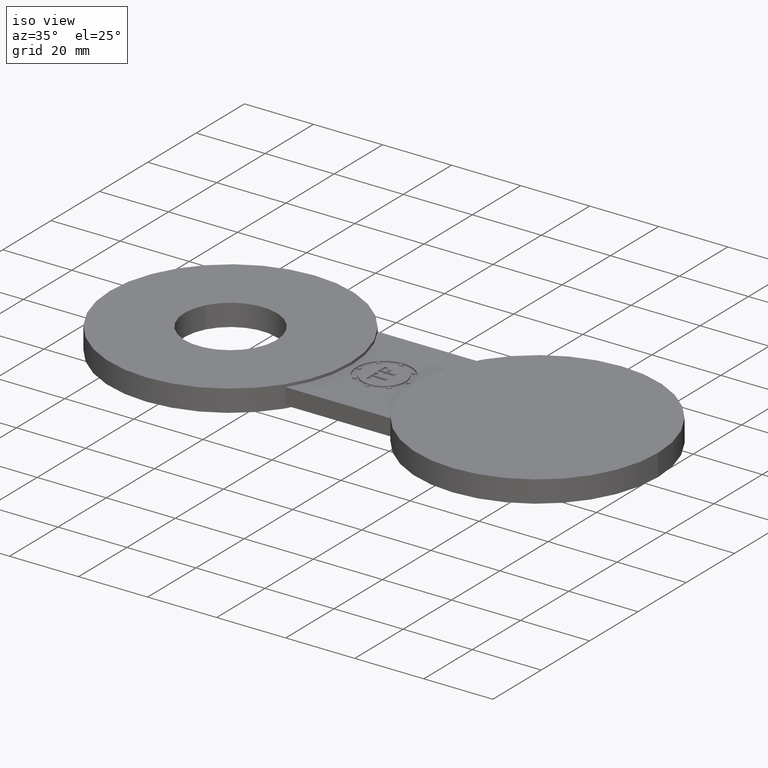
[diagram: clean part render]
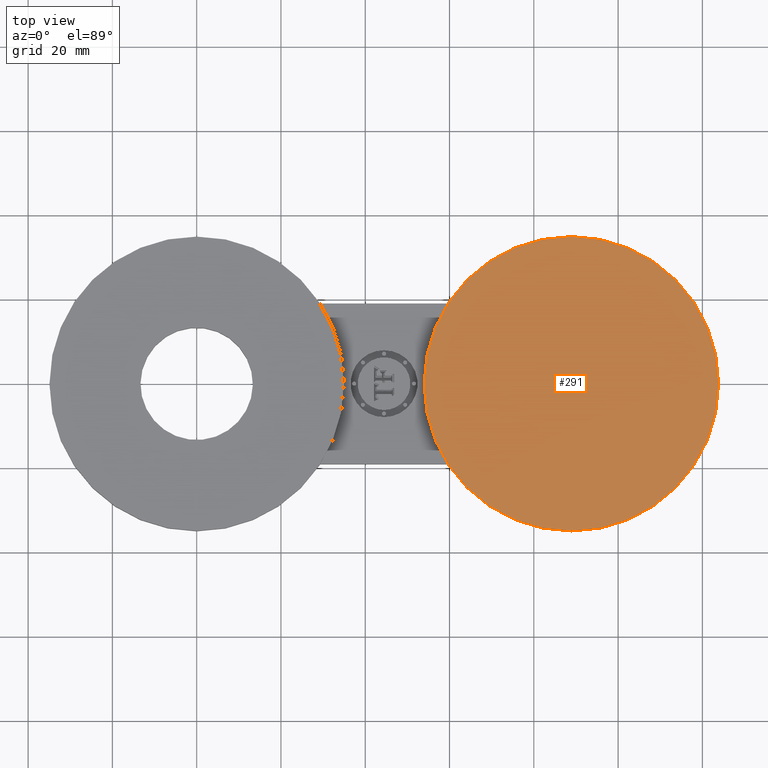
[diagram: tour spotlight — one face highlighted and labeled with its STEP entity id]
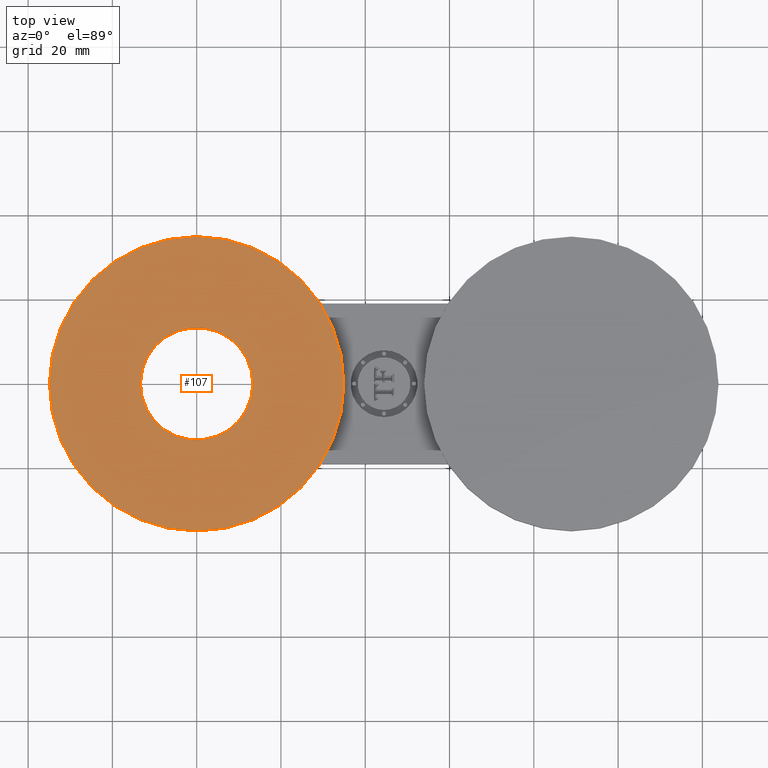
[diagram: tour spotlight — one face highlighted and labeled with its STEP entity id]
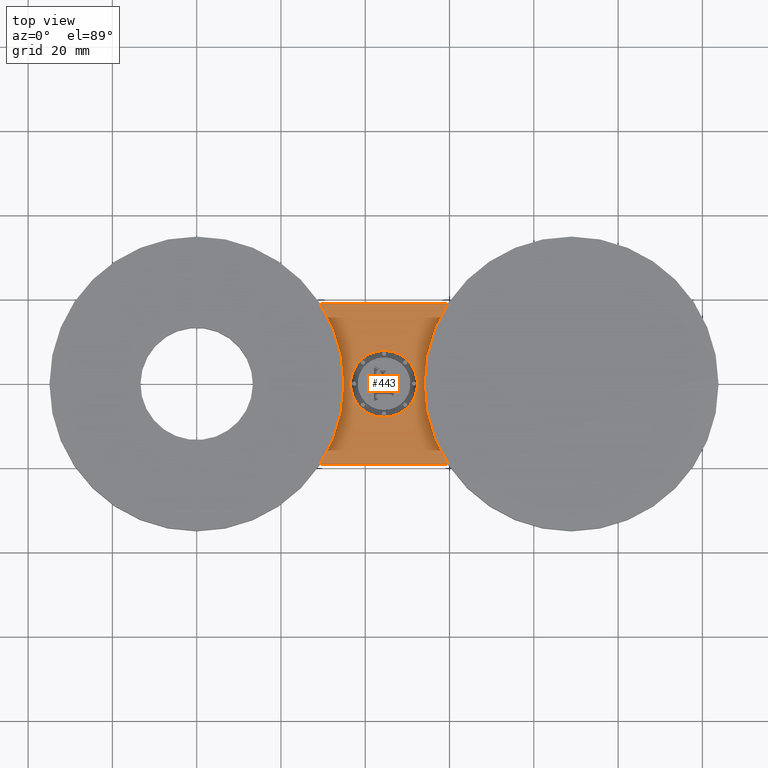
[diagram: tour spotlight — one face highlighted and labeled with its STEP entity id]
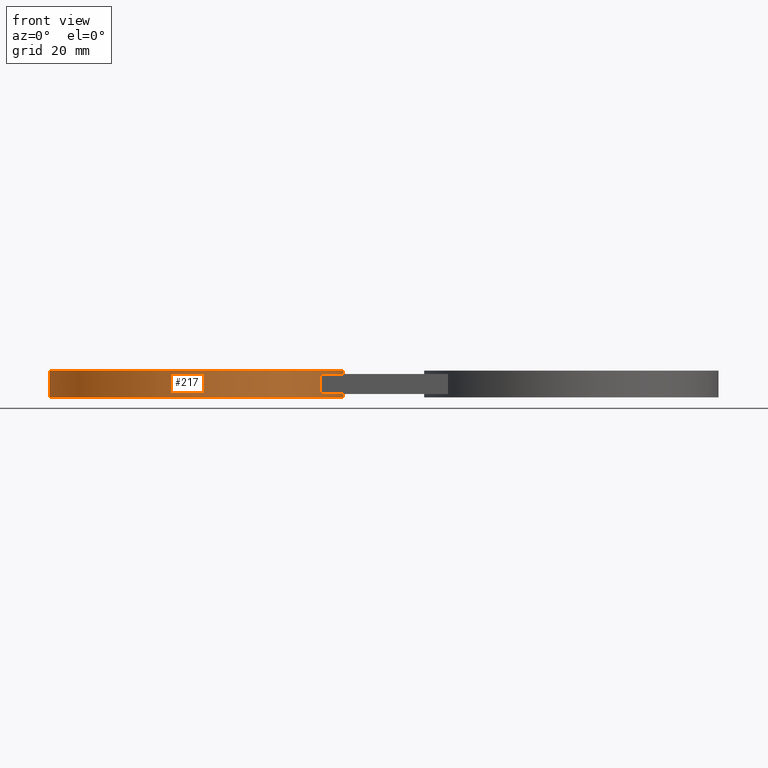
[diagram: tour spotlight — one face highlighted and labeled with its STEP entity id]
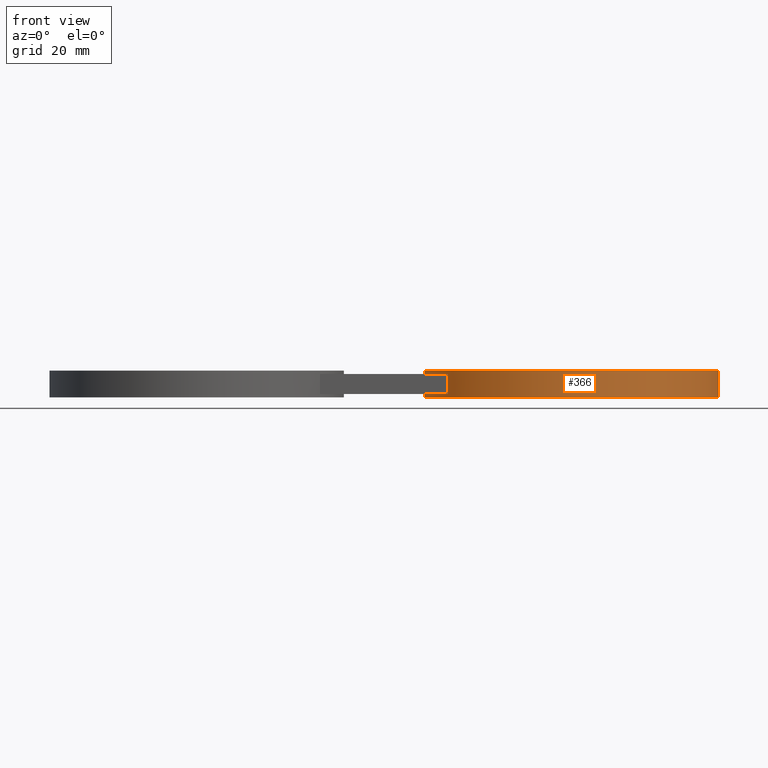
[diagram: tour spotlight — one face highlighted and labeled with its STEP entity id]
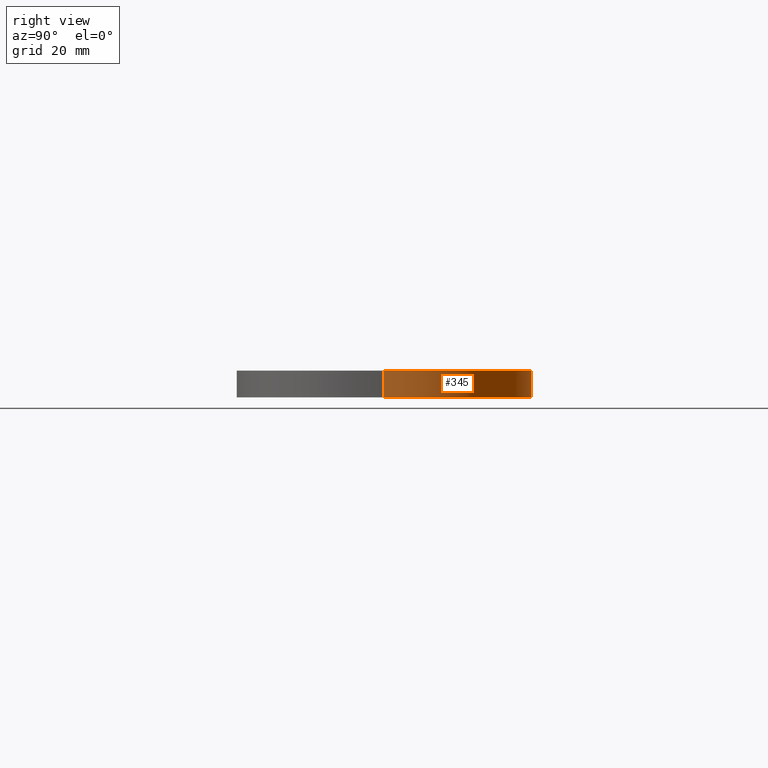
[diagram: tour spotlight — one face highlighted and labeled with its STEP entity id]
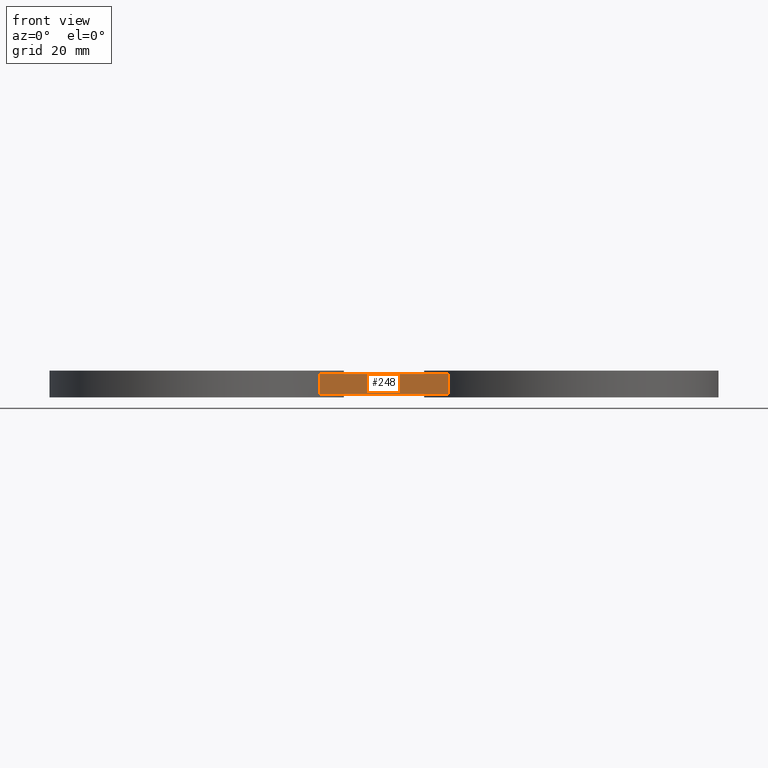
[diagram: tour spotlight — one face highlighted and labeled with its STEP entity id]
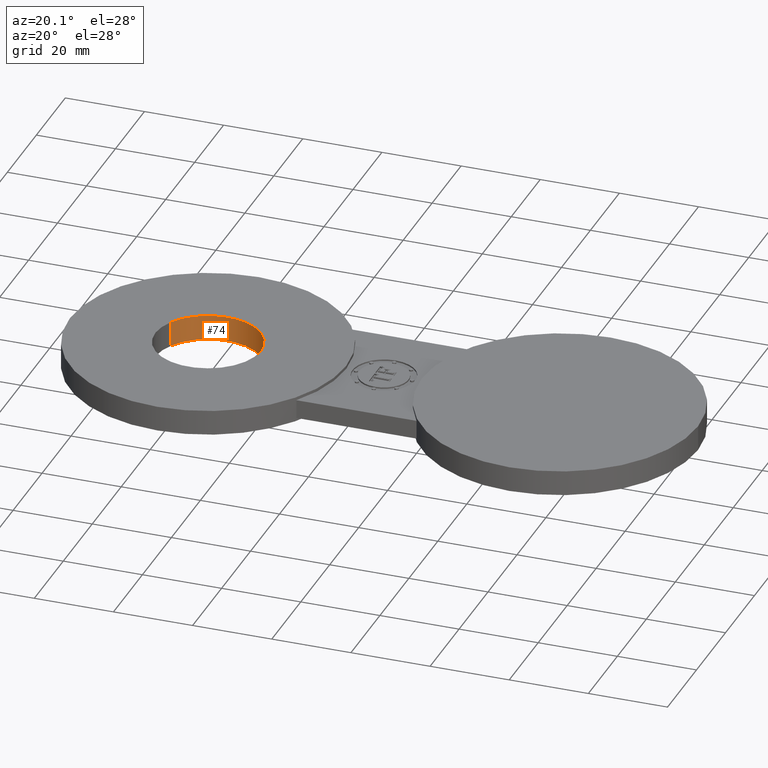
[diagram: tour spotlight — one face highlighted and labeled with its STEP entity id]
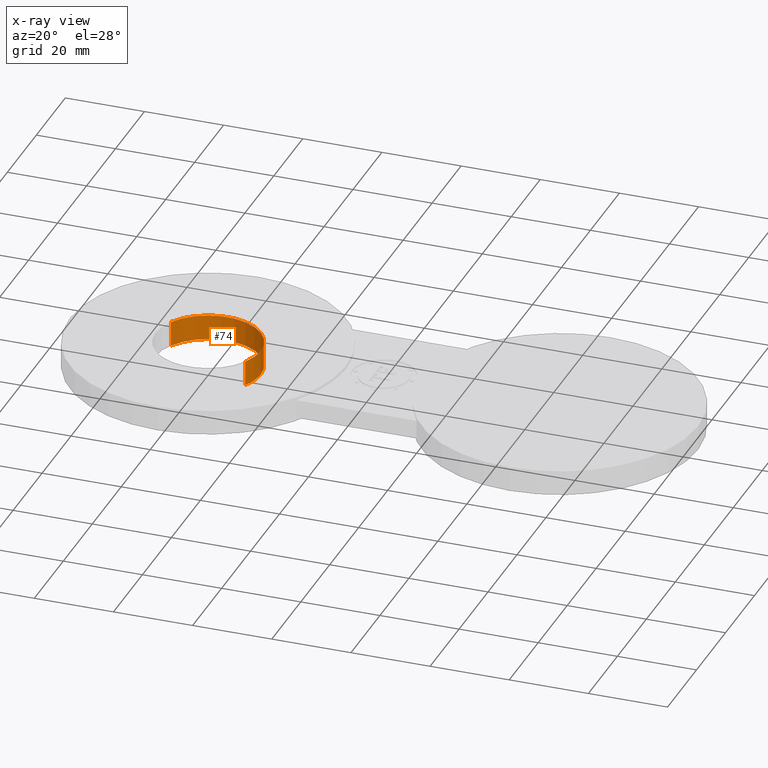
[diagram: x-ray of the same camera — body ghosted, this tour face saturated]
A machine part: a face-by-face anatomy tour. The part has 399 B-rep faces; the first image is the clean iso view, then the 8 largest visible faces are spotlighted one at a time (largest first), each with its STEP entity span.

Face 1 — top view, entity #291. In plain terms, the highlighted planar face has unit normal (0, 0, 1).
Definition (entity closure, byte-faithful):
#78=AXIS2_PLACEMENT_3D('Plane Axis2P3D',#75,#76,#77) ;
#275=AXIS2_PLACEMENT_3D('Circle Axis2P3D',#273,#274,$) ;
#284=AXIS2_PLACEMENT_3D('Circle Axis2P3D',#282,#283,$) ;
#75=CARTESIAN_POINT('Axis2P3D Location',(0.,0.,0.125000000001)) ;
#273=CARTESIAN_POINT('Axis2P3D Location',(3.50000000001,4.28626379703E-016,0.125000000001)) ;
#277=CARTESIAN_POINT('Vertex',(2.12500000001,5.97015314587E-016,0.125000000001)) ;
#279=CARTESIAN_POINT('Vertex',(4.87500000002,9.18485099364E-017,0.125000000001)) ;
#282=CARTESIAN_POINT('Axis2P3D Location',(3.50000000001,4.28626379703E-016,0.125000000001)) ;
#76=DIRECTION('Axis2P3D Direction',(0.,0.,0.0393700787402)) ;
#77=DIRECTION('Axis2P3D XDirection',(0.0393700787402,0.,0.)) ;
#274=DIRECTION('Axis2P3D Direction',(0.,0.,0.0393700787402)) ;
#283=DIRECTION('Axis2P3D Direction',(0.,0.,0.0393700787402)) ;
#288=ORIENTED_EDGE('',*,*,#281,.T.) ;
#289=ORIENTED_EDGE('',*,*,#286,.T.) ;
#291=ADVANCED_FACE('PartBody',(#290),#79,.T.) ;
#276=CIRCLE('generated circle',#275,1.37500000001) ;
#285=CIRCLE('generated circle',#284,1.37500000001) ;
#281=EDGE_CURVE('',#278,#280,#276,.T.) ;
#286=EDGE_CURVE('',#280,#278,#285,.T.) ;
#287=EDGE_LOOP('',(#288,#289)) ;
#290=FACE_OUTER_BOUND('',#287,.T.) ;
#79=PLANE('',#78) ;
#278=VERTEX_POINT('',#277) ;
#280=VERTEX_POINT('',#279) ;

Face 2 — top view, entity #107. In plain terms, the highlighted planar face has unit normal (0, 0, 1).
Definition (entity closure, byte-faithful):
#65=AXIS2_PLACEMENT_3D('Circle Axis2P3D',#63,#64,$) ;
#78=AXIS2_PLACEMENT_3D('Plane Axis2P3D',#75,#76,#77) ;
#82=AXIS2_PLACEMENT_3D('Circle Axis2P3D',#80,#81,$) ;
#91=AXIS2_PLACEMENT_3D('Circle Axis2P3D',#89,#90,$) ;
#100=AXIS2_PLACEMENT_3D('Circle Axis2P3D',#98,#99,$) ;
#46=CARTESIAN_POINT('Vertex',(-0.460730844994,0.251698407768,0.125000000001)) ;
#60=CARTESIAN_POINT('Vertex',(0.460730844994,-0.251698407768,0.125000000001)) ;
#63=CARTESIAN_POINT('Axis2P3D Location',(8.52336574023E-017,-6.99353086378E-017,0.125000000001)) ;
#75=CARTESIAN_POINT('Axis2P3D Location',(0.,0.,0.125000000001)) ;
#80=CARTESIAN_POINT('Axis2P3D Location',(0.,0.,0.125000000001)) ;
#84=CARTESIAN_POINT('Vertex',(1.37500000001,0.,0.125000000001)) ;
#86=CARTESIAN_POINT('Vertex',(-1.37500000001,1.68388934883E-016,0.125000000001)) ;
#89=CARTESIAN_POINT('Axis2P3D Location',(0.,0.,0.125000000001)) ;
#98=CARTESIAN_POINT('Axis2P3D Location',(8.74191357973E-017,-6.99353086378E-017,0.125000000001)) ;
#64=DIRECTION('Axis2P3D Direction',(0.,-0.,-0.0393700787402)) ;
#76=DIRECTION('Axis2P3D Direction',(0.,0.,0.0393700787402)) ;
#77=DIRECTION('Axis2P3D XDirection',(0.0393700787402,0.,0.)) ;
#81=DIRECTION('Axis2P3D Direction',(0.,0.,0.0393700787402)) ;
#90=DIRECTION('Axis2P3D Direction',(0.,0.,0.0393700787402)) ;
#99=DIRECTION('Axis2P3D Direction',(0.,0.,0.0393700787402)) ;
#95=ORIENTED_EDGE('',*,*,#88,.T.) ;
#96=ORIENTED_EDGE('',*,*,#93,.T.) ;
#104=ORIENTED_EDGE('',*,*,#102,.F.) ;
#105=ORIENTED_EDGE('',*,*,#67,.F.) ;
#106=FACE_BOUND('',#103,.T.) ;
#107=ADVANCED_FACE('PartBody',(#97,#106),#79,.T.) ;
#66=CIRCLE('generated circle',#65,0.525000000002) ;
#83=CIRCLE('generated circle',#82,1.37500000001) ;
#92=CIRCLE('generated circle',#91,1.37500000001) ;
#101=CIRCLE('generated circle',#100,0.525000000002) ;
#67=EDGE_CURVE('',#61,#47,#66,.F.) ;
#88=EDGE_CURVE('',#85,#87,#83,.T.) ;
#93=EDGE_CURVE('',#87,#85,#92,.T.) ;
#102=EDGE_CURVE('',#47,#61,#101,.T.) ;
#94=EDGE_LOOP('',(#95,#96)) ;
#103=EDGE_LOOP('',(#104,#105)) ;
#97=FACE_OUTER_BOUND('',#94,.T.) ;
#79=PLANE('',#78) ;
#47=VERTEX_POINT('',#46) ;
#61=VERTEX_POINT('',#60) ;
#85=VERTEX_POINT('',#84) ;
#87=VERTEX_POINT('',#86) ;

Face 3 — top view, entity #443. In plain terms, the highlighted planar face has unit normal (0, 0, 1).
Definition (entity closure, byte-faithful):
#155=AXIS2_PLACEMENT_3D('Circle Axis2P3D',#153,#154,$) ;
#204=AXIS2_PLACEMENT_3D('Circle Axis2P3D',#202,#203,$) ;
#332=AXIS2_PLACEMENT_3D('Circle Axis2P3D',#330,#331,$) ;
#348=AXIS2_PLACEMENT_3D('Circle Axis2P3D',#346,#347,$) ;
#415=AXIS2_PLACEMENT_3D('Plane Axis2P3D',#412,#413,#414) ;
#427=AXIS2_PLACEMENT_3D('Circle Axis2P3D',#425,#426,$) ;
#436=AXIS2_PLACEMENT_3D('Circle Axis2P3D',#434,#435,$) ;
#150=CARTESIAN_POINT('Vertex',(1.37500000001,0.,0.0937500000004)) ;
#153=CARTESIAN_POINT('Axis2P3D Location',(0.,0.,0.0937500000004)) ;
#157=CARTESIAN_POINT('Vertex',(1.15244305717,0.750000000003,0.0937500000004)) ;
#199=CARTESIAN_POINT('Vertex',(1.15244305717,-0.750000000003,0.0937500000004)) ;
#202=CARTESIAN_POINT('Axis2P3D Location',(0.,0.,0.0937500000004)) ;
#234=CARTESIAN_POINT('Vertex',(2.34755694285,-0.750000000003,0.0937500000004)) ;
#237=CARTESIAN_POINT('Line Origine',(1.75000000001,-0.750000000003,0.0937500000004)) ;
#301=CARTESIAN_POINT('Vertex',(2.12500000001,5.97015314587E-016,0.0937500000004)) ;
#327=CARTESIAN_POINT('Vertex',(2.34755694285,0.750000000003,0.0937500000004)) ;
#330=CARTESIAN_POINT('Axis2P3D Location',(3.50000000001,4.28626379703E-016,0.0937500000004)) ;
#346=CARTESIAN_POINT('Axis2P3D Location',(3.50000000001,4.28626379703E-016,0.0937500000004)) ;
#391=CARTESIAN_POINT('Line Origine',(1.75000000001,0.750000000003,0.0937500000004)) ;
#412=CARTESIAN_POINT('Axis2P3D Location',(0.,0.,0.0937500000004)) ;
#425=CARTESIAN_POINT('Axis2P3D Location',(1.75000000001,-1.62724055353E-015,0.0937500000004)) ;
#429=CARTESIAN_POINT('Vertex',(1.75000000001,0.312499996876,0.0937500000004)) ;
#431=CARTESIAN_POINT('Vertex',(1.75000000001,-0.312499996876,0.0937500000004)) ;
#434=CARTESIAN_POINT('Axis2P3D Location',(1.75000000001,-1.62724055353E-015,0.0937500000004)) ;
#154=DIRECTION('Axis2P3D Direction',(0.,0.,0.0393700787402)) ;
#203=DIRECTION('Axis2P3D Direction',(0.,0.,0.0393700787402)) ;
#238=DIRECTION('Vector Direction',(0.0393700787402,0.,0.)) ;
#331=DIRECTION('Axis2P3D Direction',(0.,0.,0.0393700787402)) ;
#347=DIRECTION('Axis2P3D Direction',(0.,0.,0.0393700787402)) ;
#392=DIRECTION('Vector Direction',(-0.0393700787402,0.,0.)) ;
#413=DIRECTION('Axis2P3D Direction',(0.,0.,0.0393700787402)) ;
#414=DIRECTION('Axis2P3D XDirection',(0.0393700787402,0.,0.)) ;
#426=DIRECTION('Axis2P3D Direction',(0.,0.,0.0393700787402)) ;
#435=DIRECTION('Axis2P3D Direction',(0.,0.,0.0393700787402)) ;
#239=VECTOR('Line Direction',#238,0.0393700787402) ;
#393=VECTOR('Line Direction',#392,0.0393700787402) ;
#418=ORIENTED_EDGE('',*,*,#350,.F.) ;
#419=ORIENTED_EDGE('',*,*,#334,.F.) ;
#420=ORIENTED_EDGE('',*,*,#395,.T.) ;
#421=ORIENTED_EDGE('',*,*,#159,.F.) ;
#422=ORIENTED_EDGE('',*,*,#206,.F.) ;
#423=ORIENTED_EDGE('',*,*,#241,.T.) ;
#440=ORIENTED_EDGE('',*,*,#433,.F.) ;
#441=ORIENTED_EDGE('',*,*,#438,.F.) ;
#442=FACE_BOUND('',#439,.T.) ;
#443=ADVANCED_FACE('PartBody',(#424,#442),#416,.T.) ;
#156=CIRCLE('generated circle',#155,1.37500000001) ;
#205=CIRCLE('generated circle',#204,1.37500000001) ;
#333=CIRCLE('generated circle',#332,1.37500000001) ;
#349=CIRCLE('generated circle',#348,1.37500000001) ;
#428=CIRCLE('generated circle',#427,0.312499996876) ;
#437=CIRCLE('generated circle',#436,0.312499996876) ;
#159=EDGE_CURVE('',#151,#158,#156,.T.) ;
#206=EDGE_CURVE('',#200,#151,#205,.T.) ;
#241=EDGE_CURVE('',#200,#235,#240,.T.) ;
#334=EDGE_CURVE('',#328,#302,#333,.T.) ;
#350=EDGE_CURVE('',#302,#235,#349,.T.) ;
#395=EDGE_CURVE('',#328,#158,#394,.T.) ;
#433=EDGE_CURVE('',#430,#432,#428,.T.) ;
#438=EDGE_CURVE('',#432,#430,#437,.T.) ;
#417=EDGE_LOOP('',(#418,#419,#420,#421,#422,#423)) ;
#439=EDGE_LOOP('',(#440,#441)) ;
#424=FACE_OUTER_BOUND('',#417,.T.) ;
#240=LINE('Line',#237,#239) ;
#394=LINE('Line',#391,#393) ;
#416=PLANE('',#415) ;
#151=VERTEX_POINT('',#150) ;
#158=VERTEX_POINT('',#157) ;
#200=VERTEX_POINT('',#199) ;
#235=VERTEX_POINT('',#234) ;
#302=VERTEX_POINT('',#301) ;
#328=VERTEX_POINT('',#327) ;
#430=VERTEX_POINT('',#429) ;
#432=VERTEX_POINT('',#431) ;

Face 4 — front view, entity #217. In plain terms, the highlighted cylindrical surface (partial cylindrical patch) has radius 34.925 mm, axis along (0, 0, 1).
Definition (entity closure, byte-faithful):
#91=AXIS2_PLACEMENT_3D('Circle Axis2P3D',#89,#90,$) ;
#123=AXIS2_PLACEMENT_3D('Cylinder Axis2P3D',#120,#121,#122) ;
#185=AXIS2_PLACEMENT_3D('Circle Axis2P3D',#183,#184,$) ;
#190=AXIS2_PLACEMENT_3D('Circle Axis2P3D',#188,#189,$) ;
#204=AXIS2_PLACEMENT_3D('Circle Axis2P3D',#202,#203,$) ;
#84=CARTESIAN_POINT('Vertex',(1.37500000001,0.,0.125000000001)) ;
#86=CARTESIAN_POINT('Vertex',(-1.37500000001,1.68388934883E-016,0.125000000001)) ;
#89=CARTESIAN_POINT('Axis2P3D Location',(0.,0.,0.125000000001)) ;
#120=CARTESIAN_POINT('Axis2P3D Location',(0.,0.,0.)) ;
#125=CARTESIAN_POINT('Line Origine',(1.37500000001,0.,0.)) ;
#129=CARTESIAN_POINT('Vertex',(1.37500000001,0.,-0.125000000001)) ;
#131=CARTESIAN_POINT('Vertex',(1.37500000001,0.,-0.0937500000004)) ;
#138=CARTESIAN_POINT('Vertex',(-1.37500000001,1.68388934883E-016,-0.125000000001)) ;
#141=CARTESIAN_POINT('Line Origine',(-1.37500000001,1.68388934883E-016,0.)) ;
#146=CARTESIAN_POINT('Line Origine',(1.37500000001,0.,0.)) ;
#150=CARTESIAN_POINT('Vertex',(1.37500000001,0.,0.0937500000004)) ;
#183=CARTESIAN_POINT('Axis2P3D Location',(0.,0.,-0.125000000001)) ;
#188=CARTESIAN_POINT('Axis2P3D Location',(0.,0.,-0.0937500000004)) ;
#192=CARTESIAN_POINT('Vertex',(1.15244305717,-0.750000000003,-0.0937500000004)) ;
#195=CARTESIAN_POINT('Line Origine',(1.15244305717,-0.750000000003,0.)) ;
#199=CARTESIAN_POINT('Vertex',(1.15244305717,-0.750000000003,0.0937500000004)) ;
#202=CARTESIAN_POINT('Axis2P3D Location',(0.,0.,0.0937500000004)) ;
#90=DIRECTION('Axis2P3D Direction',(0.,0.,0.0393700787402)) ;
#121=DIRECTION('Axis2P3D Direction',(0.,0.,0.0393700787402)) ;
#122=DIRECTION('Axis2P3D XDirection',(-0.0393700787402,4.82144409113E-018,0.)) ;
#126=DIRECTION('Vector Direction',(0.,0.,0.0393700787402)) ;
#142=DIRECTION('Vector Direction',(0.,0.,0.0393700787402)) ;
#147=DIRECTION('Vector Direction',(0.,0.,0.0393700787402)) ;
#184=DIRECTION('Axis2P3D Direction',(0.,0.,0.0393700787402)) ;
#189=DIRECTION('Axis2P3D Direction',(0.,0.,0.0393700787402)) ;
#196=DIRECTION('Vector Direction',(0.,0.,0.0393700787402)) ;
#203=DIRECTION('Axis2P3D Direction',(0.,0.,0.0393700787402)) ;
#127=VECTOR('Line Direction',#126,0.0393700787402) ;
#143=VECTOR('Line Direction',#142,0.0393700787402) ;
#148=VECTOR('Line Direction',#147,0.0393700787402) ;
#197=VECTOR('Line Direction',#196,0.0393700787402) ;
#208=ORIENTED_EDGE('',*,*,#152,.T.) ;
#209=ORIENTED_EDGE('',*,*,#93,.F.) ;
#210=ORIENTED_EDGE('',*,*,#145,.F.) ;
#211=ORIENTED_EDGE('',*,*,#187,.T.) ;
#212=ORIENTED_EDGE('',*,*,#133,.T.) ;
#213=ORIENTED_EDGE('',*,*,#194,.F.) ;
#214=ORIENTED_EDGE('',*,*,#201,.T.) ;
#215=ORIENTED_EDGE('',*,*,#206,.T.) ;
#217=ADVANCED_FACE('PartBody',(#216),#124,.T.) ;
#92=CIRCLE('generated circle',#91,1.37500000001) ;
#186=CIRCLE('generated circle',#185,1.37500000001) ;
#191=CIRCLE('generated circle',#190,1.37500000001) ;
#205=CIRCLE('generated circle',#204,1.37500000001) ;
#124=CYLINDRICAL_SURFACE('generated cylinder',#123,1.37500000001) ;
#93=EDGE_CURVE('',#87,#85,#92,.T.) ;
#133=EDGE_CURVE('',#130,#132,#128,.T.) ;
#145=EDGE_CURVE('',#139,#87,#144,.T.) ;
#152=EDGE_CURVE('',#151,#85,#149,.T.) ;
#187=EDGE_CURVE('',#139,#130,#186,.T.) ;
#194=EDGE_CURVE('',#193,#132,#191,.T.) ;
#201=EDGE_CURVE('',#193,#200,#198,.T.) ;
#206=EDGE_CURVE('',#200,#151,#205,.T.) ;
#207=EDGE_LOOP('',(#208,#209,#210,#211,#212,#213,#214,#215)) ;
#216=FACE_OUTER_BOUND('',#207,.T.) ;
#128=LINE('Line',#125,#127) ;
#144=LINE('Line',#141,#143) ;
#149=LINE('Line',#146,#148) ;
#198=LINE('Line',#195,#197) ;
#85=VERTEX_POINT('',#84) ;
#87=VERTEX_POINT('',#86) ;
#130=VERTEX_POINT('',#129) ;
#132=VERTEX_POINT('',#131) ;
#139=VERTEX_POINT('',#138) ;
#151=VERTEX_POINT('',#150) ;
#193=VERTEX_POINT('',#192) ;
#200=VERTEX_POINT('',#199) ;

Face 5 — front view, entity #366. In plain terms, the highlighted cylindrical surface (partial cylindrical patch) has radius 34.925 mm, axis along (0, 0, 1).
Definition (entity closure, byte-faithful):
#265=AXIS2_PLACEMENT_3D('Circle Axis2P3D',#263,#264,$) ;
#275=AXIS2_PLACEMENT_3D('Circle Axis2P3D',#273,#274,$) ;
#295=AXIS2_PLACEMENT_3D('Cylinder Axis2P3D',#292,#293,#294) ;
#348=AXIS2_PLACEMENT_3D('Circle Axis2P3D',#346,#347,$) ;
#353=AXIS2_PLACEMENT_3D('Circle Axis2P3D',#351,#352,$) ;
#227=CARTESIAN_POINT('Vertex',(2.34755694285,-0.750000000003,-0.0937500000004)) ;
#230=CARTESIAN_POINT('Line Origine',(2.34755694285,-0.750000000003,0.)) ;
#234=CARTESIAN_POINT('Vertex',(2.34755694285,-0.750000000003,0.0937500000004)) ;
#258=CARTESIAN_POINT('Vertex',(4.87500000002,9.18485099364E-017,-0.125000000001)) ;
#260=CARTESIAN_POINT('Vertex',(2.12500000001,5.97015314587E-016,-0.125000000001)) ;
#263=CARTESIAN_POINT('Axis2P3D Location',(3.50000000001,4.28626379703E-016,-0.125000000001)) ;
#273=CARTESIAN_POINT('Axis2P3D Location',(3.50000000001,4.28626379703E-016,0.125000000001)) ;
#277=CARTESIAN_POINT('Vertex',(2.12500000001,5.97015314587E-016,0.125000000001)) ;
#279=CARTESIAN_POINT('Vertex',(4.87500000002,9.18485099364E-017,0.125000000001)) ;
#292=CARTESIAN_POINT('Axis2P3D Location',(3.50000000001,4.28626379703E-016,0.)) ;
#297=CARTESIAN_POINT('Line Origine',(2.12500000001,9.33793184354E-016,0.)) ;
#301=CARTESIAN_POINT('Vertex',(2.12500000001,5.97015314587E-016,0.0937500000004)) ;
#304=CARTESIAN_POINT('Line Origine',(4.87500000002,9.18485099364E-017,0.)) ;
#309=CARTESIAN_POINT('Line Origine',(2.12500000001,9.33793184354E-016,0.)) ;
#313=CARTESIAN_POINT('Vertex',(2.12500000001,5.97015314587E-016,-0.0937500000004)) ;
#346=CARTESIAN_POINT('Axis2P3D Location',(3.50000000001,4.28626379703E-016,0.0937500000004)) ;
#351=CARTESIAN_POINT('Axis2P3D Location',(3.50000000001,4.28626379703E-016,-0.0937500000004)) ;
#231=DIRECTION('Vector Direction',(0.,0.,0.0393700787402)) ;
#264=DIRECTION('Axis2P3D Direction',(0.,0.,0.0393700787402)) ;
#274=DIRECTION('Axis2P3D Direction',(0.,0.,0.0393700787402)) ;
#293=DIRECTION('Axis2P3D Direction',(0.,0.,0.0393700787402)) ;
#294=DIRECTION('Axis2P3D XDirection',(-0.0393700787402,4.82144409113E-018,0.)) ;
#298=DIRECTION('Vector Direction',(0.,0.,0.0393700787402)) ;
#305=DIRECTION('Vector Direction',(0.,0.,0.0393700787402)) ;
#310=DIRECTION('Vector Direction',(0.,0.,0.0393700787402)) ;
#347=DIRECTION('Axis2P3D Direction',(0.,0.,0.0393700787402)) ;
#352=DIRECTION('Axis2P3D Direction',(0.,0.,0.0393700787402)) ;
#232=VECTOR('Line Direction',#231,0.0393700787402) ;
#299=VECTOR('Line Direction',#298,0.0393700787402) ;
#306=VECTOR('Line Direction',#305,0.0393700787402) ;
#311=VECTOR('Line Direction',#310,0.0393700787402) ;
#357=ORIENTED_EDGE('',*,*,#315,.F.) ;
#358=ORIENTED_EDGE('',*,*,#267,.T.) ;
#359=ORIENTED_EDGE('',*,*,#308,.T.) ;
#360=ORIENTED_EDGE('',*,*,#281,.F.) ;
#361=ORIENTED_EDGE('',*,*,#303,.F.) ;
#362=ORIENTED_EDGE('',*,*,#350,.T.) ;
#363=ORIENTED_EDGE('',*,*,#236,.F.) ;
#364=ORIENTED_EDGE('',*,*,#355,.F.) ;
#366=ADVANCED_FACE('PartBody',(#365),#296,.T.) ;
#266=CIRCLE('generated circle',#265,1.37500000001) ;
#276=CIRCLE('generated circle',#275,1.37500000001) ;
#349=CIRCLE('generated circle',#348,1.37500000001) ;
#354=CIRCLE('generated circle',#353,1.37500000001) ;
#296=CYLINDRICAL_SURFACE('generated cylinder',#295,1.37500000001) ;
#236=EDGE_CURVE('',#228,#235,#233,.T.) ;
#267=EDGE_CURVE('',#261,#259,#266,.T.) ;
#281=EDGE_CURVE('',#278,#280,#276,.T.) ;
#303=EDGE_CURVE('',#302,#278,#300,.T.) ;
#308=EDGE_CURVE('',#259,#280,#307,.T.) ;
#315=EDGE_CURVE('',#261,#314,#312,.T.) ;
#350=EDGE_CURVE('',#302,#235,#349,.T.) ;
#355=EDGE_CURVE('',#314,#228,#354,.T.) ;
#356=EDGE_LOOP('',(#357,#358,#359,#360,#361,#362,#363,#364)) ;
#365=FACE_OUTER_BOUND('',#356,.T.) ;
#233=LINE('Line',#230,#232) ;
#300=LINE('Line',#297,#299) ;
#307=LINE('Line',#304,#306) ;
#312=LINE('Line',#309,#311) ;
#228=VERTEX_POINT('',#227) ;
#235=VERTEX_POINT('',#234) ;
#259=VERTEX_POINT('',#258) ;
#261=VERTEX_POINT('',#260) ;
#278=VERTEX_POINT('',#277) ;
#280=VERTEX_POINT('',#279) ;
#302=VERTEX_POINT('',#301) ;
#314=VERTEX_POINT('',#313) ;

Face 6 — right view, entity #345. In plain terms, the highlighted cylindrical surface (partial cylindrical patch) has radius 34.925 mm, axis along (0, 0, 1).
Definition (entity closure, byte-faithful):
#256=AXIS2_PLACEMENT_3D('Circle Axis2P3D',#254,#255,$) ;
#284=AXIS2_PLACEMENT_3D('Circle Axis2P3D',#282,#283,$) ;
#295=AXIS2_PLACEMENT_3D('Cylinder Axis2P3D',#292,#293,#294) ;
#318=AXIS2_PLACEMENT_3D('Circle Axis2P3D',#316,#317,$) ;
#332=AXIS2_PLACEMENT_3D('Circle Axis2P3D',#330,#331,$) ;
#254=CARTESIAN_POINT('Axis2P3D Location',(3.50000000001,4.28626379703E-016,-0.125000000001)) ;
#258=CARTESIAN_POINT('Vertex',(4.87500000002,9.18485099364E-017,-0.125000000001)) ;
#260=CARTESIAN_POINT('Vertex',(2.12500000001,5.97015314587E-016,-0.125000000001)) ;
#277=CARTESIAN_POINT('Vertex',(2.12500000001,5.97015314587E-016,0.125000000001)) ;
#279=CARTESIAN_POINT('Vertex',(4.87500000002,9.18485099364E-017,0.125000000001)) ;
#282=CARTESIAN_POINT('Axis2P3D Location',(3.50000000001,4.28626379703E-016,0.125000000001)) ;
#292=CARTESIAN_POINT('Axis2P3D Location',(3.50000000001,4.28626379703E-016,0.)) ;
#297=CARTESIAN_POINT('Line Origine',(2.12500000001,9.33793184354E-016,0.)) ;
#301=CARTESIAN_POINT('Vertex',(2.12500000001,5.97015314587E-016,0.0937500000004)) ;
#304=CARTESIAN_POINT('Line Origine',(4.87500000002,9.18485099364E-017,0.)) ;
#309=CARTESIAN_POINT('Line Origine',(2.12500000001,9.33793184354E-016,0.)) ;
#313=CARTESIAN_POINT('Vertex',(2.12500000001,5.97015314587E-016,-0.0937500000004)) ;
#316=CARTESIAN_POINT('Axis2P3D Location',(3.50000000001,4.28626379703E-016,-0.0937500000004)) ;
#320=CARTESIAN_POINT('Vertex',(2.34755694285,0.750000000003,-0.0937500000004)) ;
#323=CARTESIAN_POINT('Line Origine',(2.34755694285,0.750000000003,0.)) ;
#327=CARTESIAN_POINT('Vertex',(2.34755694285,0.750000000003,0.0937500000004)) ;
#330=CARTESIAN_POINT('Axis2P3D Location',(3.50000000001,4.28626379703E-016,0.0937500000004)) ;
#255=DIRECTION('Axis2P3D Direction',(0.,0.,0.0393700787402)) ;
#283=DIRECTION('Axis2P3D Direction',(0.,0.,0.0393700787402)) ;
#293=DIRECTION('Axis2P3D Direction',(0.,0.,0.0393700787402)) ;
#294=DIRECTION('Axis2P3D XDirection',(-0.0393700787402,4.82144409113E-018,0.)) ;
#298=DIRECTION('Vector Direction',(0.,0.,0.0393700787402)) ;
#305=DIRECTION('Vector Direction',(0.,0.,0.0393700787402)) ;
#310=DIRECTION('Vector Direction',(0.,0.,0.0393700787402)) ;
#317=DIRECTION('Axis2P3D Direction',(0.,0.,0.0393700787402)) ;
#324=DIRECTION('Vector Direction',(0.,0.,0.0393700787402)) ;
#331=DIRECTION('Axis2P3D Direction',(0.,0.,0.0393700787402)) ;
#299=VECTOR('Line Direction',#298,0.0393700787402) ;
#306=VECTOR('Line Direction',#305,0.0393700787402) ;
#311=VECTOR('Line Direction',#310,0.0393700787402) ;
#325=VECTOR('Line Direction',#324,0.0393700787402) ;
#336=ORIENTED_EDGE('',*,*,#303,.T.) ;
#337=ORIENTED_EDGE('',*,*,#286,.F.) ;
#338=ORIENTED_EDGE('',*,*,#308,.F.) ;
#339=ORIENTED_EDGE('',*,*,#262,.T.) ;
#340=ORIENTED_EDGE('',*,*,#315,.T.) ;
#341=ORIENTED_EDGE('',*,*,#322,.F.) ;
#342=ORIENTED_EDGE('',*,*,#329,.T.) ;
#343=ORIENTED_EDGE('',*,*,#334,.T.) ;
#345=ADVANCED_FACE('PartBody',(#344),#296,.T.) ;
#257=CIRCLE('generated circle',#256,1.37500000001) ;
#285=CIRCLE('generated circle',#284,1.37500000001) ;
#319=CIRCLE('generated circle',#318,1.37500000001) ;
#333=CIRCLE('generated circle',#332,1.37500000001) ;
#296=CYLINDRICAL_SURFACE('generated cylinder',#295,1.37500000001) ;
#262=EDGE_CURVE('',#259,#261,#257,.T.) ;
#286=EDGE_CURVE('',#280,#278,#285,.T.) ;
#303=EDGE_CURVE('',#302,#278,#300,.T.) ;
#308=EDGE_CURVE('',#259,#280,#307,.T.) ;
#315=EDGE_CURVE('',#261,#314,#312,.T.) ;
#322=EDGE_CURVE('',#321,#314,#319,.T.) ;
#329=EDGE_CURVE('',#321,#328,#326,.T.) ;
#334=EDGE_CURVE('',#328,#302,#333,.T.) ;
#335=EDGE_LOOP('',(#336,#337,#338,#339,#340,#341,#342,#343)) ;
#344=FACE_OUTER_BOUND('',#335,.T.) ;
#300=LINE('Line',#297,#299) ;
#307=LINE('Line',#304,#306) ;
#312=LINE('Line',#309,#311) ;
#326=LINE('Line',#323,#325) ;
#259=VERTEX_POINT('',#258) ;
#261=VERTEX_POINT('',#260) ;
#278=VERTEX_POINT('',#277) ;
#280=VERTEX_POINT('',#279) ;
#302=VERTEX_POINT('',#301) ;
#314=VERTEX_POINT('',#313) ;
#321=VERTEX_POINT('',#320) ;
#328=VERTEX_POINT('',#327) ;

Face 7 — front view, entity #248. In plain terms, the highlighted planar face has unit normal (0, -1, 0).
Definition (entity closure, byte-faithful):
#221=AXIS2_PLACEMENT_3D('Plane Axis2P3D',#218,#219,#220) ;
#192=CARTESIAN_POINT('Vertex',(1.15244305717,-0.750000000003,-0.0937500000004)) ;
#195=CARTESIAN_POINT('Line Origine',(1.15244305717,-0.750000000003,0.)) ;
#199=CARTESIAN_POINT('Vertex',(1.15244305717,-0.750000000003,0.0937500000004)) ;
#218=CARTESIAN_POINT('Axis2P3D Location',(1.15244305717,-0.750000000003,0.)) ;
#223=CARTESIAN_POINT('Line Origine',(1.75000000001,-0.750000000003,-0.0937500000004)) ;
#227=CARTESIAN_POINT('Vertex',(2.34755694285,-0.750000000003,-0.0937500000004)) ;
#230=CARTESIAN_POINT('Line Origine',(2.34755694285,-0.750000000003,0.)) ;
#234=CARTESIAN_POINT('Vertex',(2.34755694285,-0.750000000003,0.0937500000004)) ;
#237=CARTESIAN_POINT('Line Origine',(1.75000000001,-0.750000000003,0.0937500000004)) ;
#196=DIRECTION('Vector Direction',(0.,0.,0.0393700787402)) ;
#219=DIRECTION('Axis2P3D Direction',(0.,-0.0393700787402,0.)) ;
#220=DIRECTION('Axis2P3D XDirection',(0.0393700787402,0.,0.)) ;
#224=DIRECTION('Vector Direction',(0.0393700787402,0.,0.)) ;
#231=DIRECTION('Vector Direction',(0.,0.,0.0393700787402)) ;
#238=DIRECTION('Vector Direction',(0.0393700787402,0.,0.)) ;
#197=VECTOR('Line Direction',#196,0.0393700787402) ;
#225=VECTOR('Line Direction',#224,0.0393700787402) ;
#232=VECTOR('Line Direction',#231,0.0393700787402) ;
#239=VECTOR('Line Direction',#238,0.0393700787402) ;
#243=ORIENTED_EDGE('',*,*,#201,.F.) ;
#244=ORIENTED_EDGE('',*,*,#229,.T.) ;
#245=ORIENTED_EDGE('',*,*,#236,.T.) ;
#246=ORIENTED_EDGE('',*,*,#241,.F.) ;
#248=ADVANCED_FACE('PartBody',(#247),#222,.T.) ;
#201=EDGE_CURVE('',#193,#200,#198,.T.) ;
#229=EDGE_CURVE('',#193,#228,#226,.T.) ;
#236=EDGE_CURVE('',#228,#235,#233,.T.) ;
#241=EDGE_CURVE('',#200,#235,#240,.T.) ;
#242=EDGE_LOOP('',(#243,#244,#245,#246)) ;
#247=FACE_OUTER_BOUND('',#242,.T.) ;
#198=LINE('Line',#195,#197) ;
#226=LINE('Line',#223,#225) ;
#233=LINE('Line',#230,#232) ;
#240=LINE('Line',#237,#239) ;
#222=PLANE('',#221) ;
#193=VERTEX_POINT('',#192) ;
#200=VERTEX_POINT('',#199) ;
#228=VERTEX_POINT('',#227) ;
#235=VERTEX_POINT('',#234) ;

Face 8 — auxiliary view, entity #74. An x-ray twin of the same camera follows (body ghosted, this face saturated) — the face is partly hidden behind the body. In plain terms, the highlighted cylindrical surface (partial cylindrical patch) has radius 13.335 mm, axis along (0, -0, -1).
Definition (entity closure, byte-faithful):
#38=AXIS2_PLACEMENT_3D('Cylinder Axis2P3D',#35,#36,#37) ;
#51=AXIS2_PLACEMENT_3D('Circle Axis2P3D',#49,#50,$) ;
#65=AXIS2_PLACEMENT_3D('Circle Axis2P3D',#63,#64,$) ;
#35=CARTESIAN_POINT('Axis2P3D Location',(8.52336574023E-017,-6.99353086378E-017,0.121062992126)) ;
#40=CARTESIAN_POINT('Line Origine',(-0.460730844994,0.251698407768,1.74838271595E-017)) ;
#44=CARTESIAN_POINT('Vertex',(-0.460730844994,0.251698407768,-0.125)) ;
#46=CARTESIAN_POINT('Vertex',(-0.460730844994,0.251698407768,0.125000000001)) ;
#49=CARTESIAN_POINT('Axis2P3D Location',(8.52336574023E-017,-6.99353086378E-017,-0.125)) ;
#53=CARTESIAN_POINT('Vertex',(0.460730844994,-0.251698407768,-0.125)) ;
#56=CARTESIAN_POINT('Line Origine',(0.460730844994,-0.251698407768,1.74838271595E-017)) ;
#60=CARTESIAN_POINT('Vertex',(0.460730844994,-0.251698407768,0.125000000001)) ;
#63=CARTESIAN_POINT('Axis2P3D Location',(8.52336574023E-017,-6.99353086378E-017,0.125000000001)) ;
#36=DIRECTION('Axis2P3D Direction',(0.,-0.,-0.0393700787402)) ;
#37=DIRECTION('Axis2P3D XDirection',(0.0345504945626,-0.0188750212049,0.)) ;
#41=DIRECTION('Vector Direction',(0.,0.,-0.0393700787402)) ;
#50=DIRECTION('Axis2P3D Direction',(0.,-0.,-0.0393700787402)) ;
#57=DIRECTION('Vector Direction',(0.,0.,-0.0393700787402)) ;
#64=DIRECTION('Axis2P3D Direction',(0.,-0.,-0.0393700787402)) ;
#42=VECTOR('Line Direction',#41,0.0393700787402) ;
#58=VECTOR('Line Direction',#57,0.0393700787402) ;
#69=ORIENTED_EDGE('',*,*,#48,.F.) ;
#70=ORIENTED_EDGE('',*,*,#55,.F.) ;
#71=ORIENTED_EDGE('',*,*,#62,.T.) ;
#72=ORIENTED_EDGE('',*,*,#67,.T.) ;
#74=ADVANCED_FACE('PartBody',(#73),#39,.F.) ;
#52=CIRCLE('generated circle',#51,0.525000000002) ;
#66=CIRCLE('generated circle',#65,0.525000000002) ;
#39=CYLINDRICAL_SURFACE('generated cylinder',#38,0.525000000002) ;
#48=EDGE_CURVE('',#45,#47,#43,.F.) ;
#55=EDGE_CURVE('',#54,#45,#52,.F.) ;
#62=EDGE_CURVE('',#54,#61,#59,.F.) ;
#67=EDGE_CURVE('',#61,#47,#66,.F.) ;
#68=EDGE_LOOP('',(#69,#70,#71,#72)) ;
#73=FACE_OUTER_BOUND('',#68,.T.) ;
#43=LINE('Line',#40,#42) ;
#59=LINE('Line',#56,#58) ;
#45=VERTEX_POINT('',#44) ;
#47=VERTEX_POINT('',#46) ;
#54=VERTEX_POINT('',#53) ;
#61=VERTEX_POINT('',#60) ;